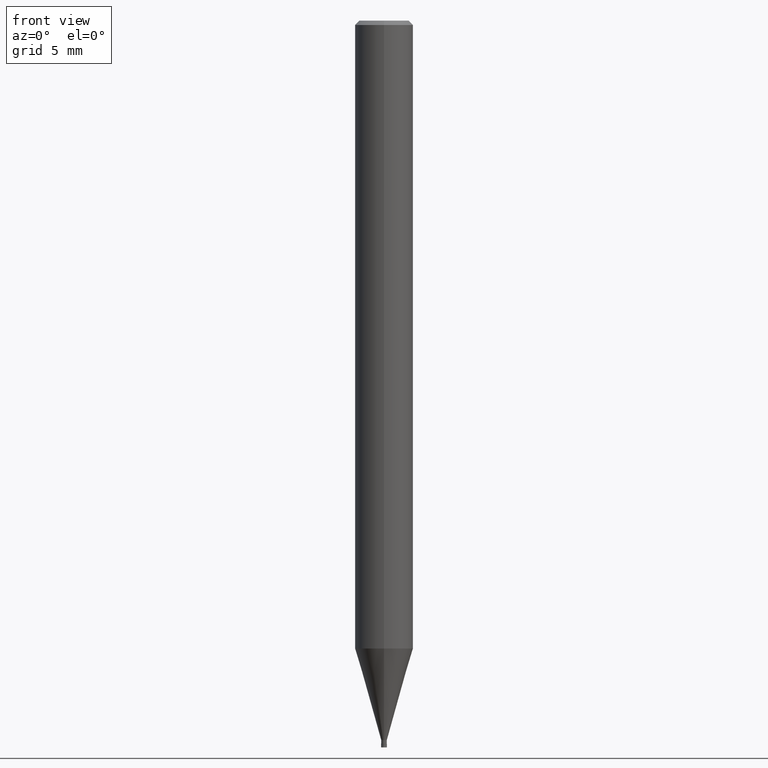
[diagram: clean part render]
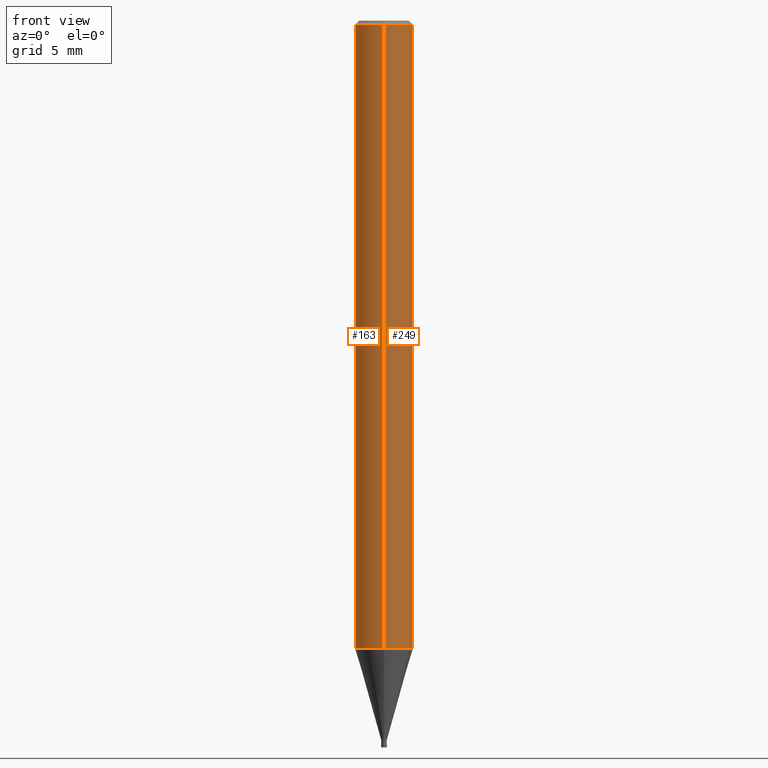
[diagram: same view with one multi-face feature highlighted, each face labeled with its STEP entity id]
A machine part, front view. The highlighted faces form ONE feature: a constant-radius fillet chain: 2 tangent blend faces with common blend radius 2 mm. The faces share edges in the B-rep.
Their STEP definitions:
[1] entity #249 (Cylinder):
#141=VERTEX_POINT('',#376);
#149=VERTEX_POINT('',#386);
#165=VERTEX_POINT('',#404);
#241=EDGE_CURVE('',#165,#243,#490,.T.);
#243=VERTEX_POINT('',#492);
#245=EDGE_CURVE('',#141,#149,#494,.T.);
#249=ADVANCED_FACE('',(#499),#500,.T.);
#253=EDGE_CURVE('',#243,#149,#504,.T.);
#269=EDGE_CURVE('',#141,#165,#520,.T.);
#376=CARTESIAN_POINT('',(0.0,2.0,-0.289999999999999));
#386=CARTESIAN_POINT('',(2.44921270764475E-016,-2.0,-0.289999999999999));
#404=CARTESIAN_POINT('',(0.0,2.0,-43.186));
#490=CIRCLE('',#776,2.0);
#492=CARTESIAN_POINT('',(2.44921270764475E-016,-2.0,-43.186));
#494=CIRCLE('',#781,2.0);
#499=FACE_OUTER_BOUND('',#786,.T.);
#500=CYLINDRICAL_SURFACE('',#787,2.0);
#504=LINE('',#792,#793);
#520=LINE('',#814,#815);
#776=AXIS2_PLACEMENT_3D('',#1099,#1100,#1101);
#781=AXIS2_PLACEMENT_3D('',#1102,#1103,#1104);
#786=EDGE_LOOP('',(#1112,#1113,#1114,#1115));
#787=AXIS2_PLACEMENT_3D('',#1116,#1117,#1118);
#792=CARTESIAN_POINT('',(2.44921270764475E-016,-2.0,-21.738));
#793=VECTOR('',#1119,1.0);
#814=CARTESIAN_POINT('',(-2.44921270764475E-016,2.0,-21.738));
#815=VECTOR('',#1136,1.0);
#1099=CARTESIAN_POINT('',(0.0,0.0,-43.186));
#1100=DIRECTION('',(0.0,0.0,-1.0));
#1101=DIRECTION('',(0.0,1.0,0.0));
#1102=CARTESIAN_POINT('',(0.0,0.0,-0.289999999999999));
#1103=DIRECTION('',(0.0,0.0,-1.0));
#1104=DIRECTION('',(0.0,1.0,0.0));
#1112=ORIENTED_EDGE('',*,*,#269,.F.);
#1113=ORIENTED_EDGE('',*,*,#245,.T.);
#1114=ORIENTED_EDGE('',*,*,#253,.F.);
#1115=ORIENTED_EDGE('',*,*,#241,.F.);
#1116=CARTESIAN_POINT('',(0.0,0.0,-21.738));
#1117=DIRECTION('',(-0.0,-0.0,1.0));
#1118=DIRECTION('',(0.0,1.0,0.0));
#1119=DIRECTION('',(-0.0,-0.0,1.0));
#1136=DIRECTION('',(0.0,0.0,-1.0));
[2] entity #163 (Cylinder):
#141=VERTEX_POINT('',#376);
#149=VERTEX_POINT('',#386);
#163=ADVANCED_FACE('',(#401),#402,.T.);
#165=VERTEX_POINT('',#404);
#243=VERTEX_POINT('',#492);
#253=EDGE_CURVE('',#243,#149,#504,.T.);
#269=EDGE_CURVE('',#141,#165,#520,.T.);
#315=EDGE_CURVE('',#149,#141,#572,.T.);
#339=EDGE_CURVE('',#243,#165,#598,.T.);
#376=CARTESIAN_POINT('',(0.0,2.0,-0.289999999999999));
#386=CARTESIAN_POINT('',(2.44921270764475E-016,-2.0,-0.289999999999999));
#401=FACE_OUTER_BOUND('',#662,.T.);
#402=CYLINDRICAL_SURFACE('',#663,2.0);
#404=CARTESIAN_POINT('',(0.0,2.0,-43.186));
#492=CARTESIAN_POINT('',(2.44921270764475E-016,-2.0,-43.186));
#504=LINE('',#792,#793);
#520=LINE('',#814,#815);
#572=CIRCLE('',#883,2.0);
#598=CIRCLE('',#917,2.0);
#662=EDGE_LOOP('',(#982,#983,#984,#985));
#663=AXIS2_PLACEMENT_3D('',#986,#987,#988);
#792=CARTESIAN_POINT('',(2.44921270764475E-016,-2.0,-21.738));
#793=VECTOR('',#1119,1.0);
#814=CARTESIAN_POINT('',(-2.44921270764475E-016,2.0,-21.738));
#815=VECTOR('',#1136,1.0);
#883=AXIS2_PLACEMENT_3D('',#1194,#1195,#1196);
#917=AXIS2_PLACEMENT_3D('',#1223,#1224,#1225);
#982=ORIENTED_EDGE('',*,*,#269,.T.);
#983=ORIENTED_EDGE('',*,*,#339,.F.);
#984=ORIENTED_EDGE('',*,*,#253,.T.);
#985=ORIENTED_EDGE('',*,*,#315,.T.);
#986=CARTESIAN_POINT('',(0.0,0.0,-21.738));
#987=DIRECTION('',(-0.0,-0.0,1.0));
#988=DIRECTION('',(0.0,1.0,0.0));
#1119=DIRECTION('',(-0.0,-0.0,1.0));
#1136=DIRECTION('',(0.0,0.0,-1.0));
#1194=CARTESIAN_POINT('',(0.0,0.0,-0.289999999999999));
#1195=DIRECTION('',(0.0,0.0,-1.0));
#1196=DIRECTION('',(0.0,1.0,0.0));
#1223=CARTESIAN_POINT('',(0.0,0.0,-43.186));
#1224=DIRECTION('',(0.0,0.0,-1.0));
#1225=DIRECTION('',(0.0,1.0,0.0));